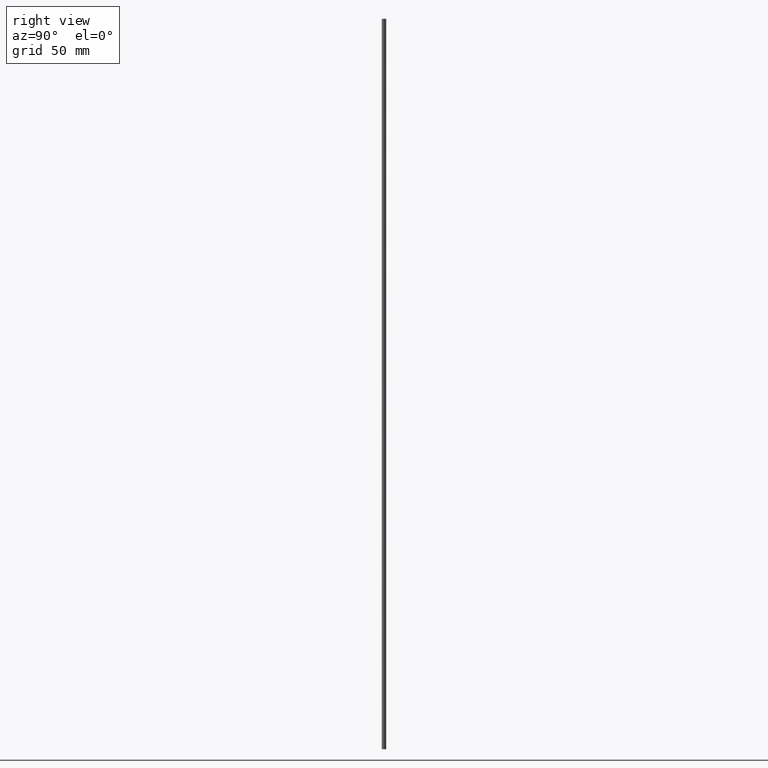
[diagram: clean part render]
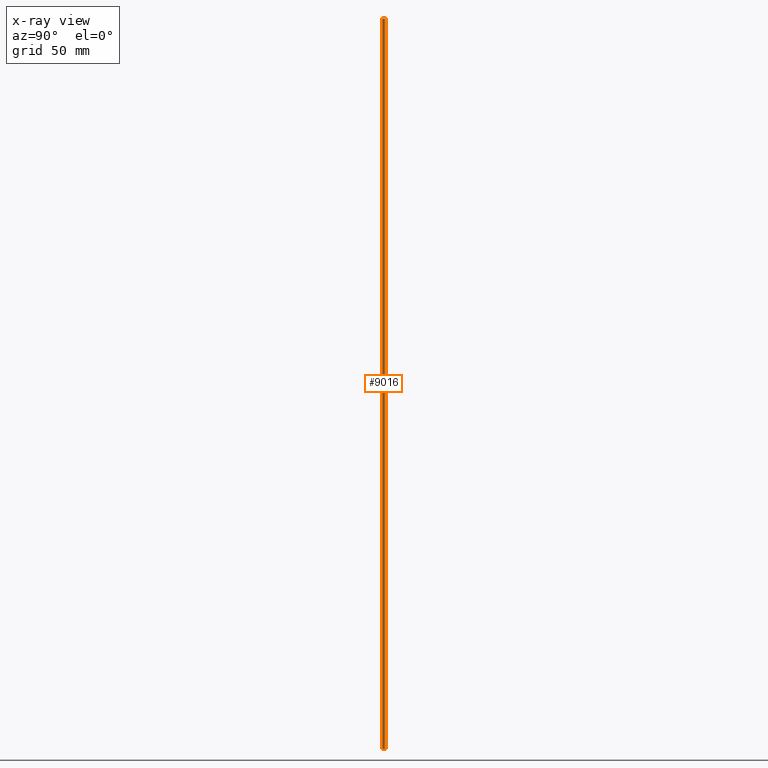
[diagram: x-ray — body ghosted, one internal face saturated and labeled with its STEP entity id]
A machine part, right view, then the same camera in x-ray: the body is ghosted and one INTERNAL B-rep face — a face not visible from any outside direction — is saturated and labeled: STEP entity #9016.
In plain terms, the highlighted face is a freeform B-spline surface patch.
Its self-contained STEP definition (entity closure, byte-faithful):
#8918=CARTESIAN_POINT('',(-0.058844321795884,-0.747688000299846,410.000000000000110));
#8919=CARTESIAN_POINT('',(-0.806532322095730,-0.688843678503961,410.000000000000170));
#8920=CARTESIAN_POINT('',(-0.747688000299846,0.058844321795884,410.000000000000110));
#8921=CARTESIAN_POINT('',(-0.688843678503961,0.806532322095730,410.000000000000170));
#8922=CARTESIAN_POINT('',(0.058844321795884,0.747688000299846,410.000000000000110));
#8923=CARTESIAN_POINT('',(-0.058844321795884,-0.747688000299846,-10.250000000000000));
#8924=CARTESIAN_POINT('',(-0.806532322095730,-0.688843678503961,-10.250000000000000));
#8925=CARTESIAN_POINT('',(-0.747688000299846,0.058844321795884,-10.250000000000000));
#8926=CARTESIAN_POINT('',(-0.688843678503961,0.806532322095730,-10.250000000000000));
#8927=CARTESIAN_POINT('',(0.058844321795884,0.747688000299846,-10.250000000000000));
#8935=(BOUNDED_SURFACE()B_SPLINE_SURFACE(2,1,((#8918,#8923),(#8919,#8924),(#8920,#8925),(#8921,#8926),(#8922,#8927)),.UNSPECIFIED.,.F.,.F.,.U.)B_SPLINE_SURFACE_WITH_KNOTS((3,2,3),(2,2),(3.141592653589793,4.712388980384690,6.283185307179586),(0.0,420.250000000000110),.UNSPECIFIED.)GEOMETRIC_REPRESENTATION_ITEM()RATIONAL_B_SPLINE_SURFACE(((1.0,1.0),(0.707106781186548,0.707106781186548),(1.0,1.0),(0.707106781186548,0.707106781186548),(1.0,1.0)))REPRESENTATION_ITEM('')SURFACE());
#8936=CARTESIAN_POINT('',(-0.750000000000000,0.0,0.0));
#8937=VERTEX_POINT('',#8936);
#8938=CARTESIAN_POINT('',(-0.058844662161859,-0.747687973512307,2.842171E-014));
#8939=VERTEX_POINT('',#8938);
#8940=CARTESIAN_POINT('',(-0.750000000000000,0.0,0.0));
#8941=CARTESIAN_POINT('',(-0.750000000000000,-0.693292235584134,0.0));
#8942=CARTESIAN_POINT('',(-0.058844662161859,-0.747687973512307,2.842171E-014));
#8950=(BOUNDED_CURVE()B_SPLINE_CURVE(2,(#8940,#8941,#8942),.UNSPECIFIED.,.F.,.U.)B_SPLINE_CURVE_WITH_KNOTS((3,3),(0.0,0.236331144559496),.UNSPECIFIED.)CURVE()GEOMETRIC_REPRESENTATION_ITEM()RATIONAL_B_SPLINE_CURVE((1.0,0.723120841456408,0.969723030459033))REPRESENTATION_ITEM(''));
#8951=EDGE_CURVE('',#8937,#8939,#8950,.T.);
#8952=ORIENTED_EDGE('',*,*,#8951,.T.);
#8953=CARTESIAN_POINT('',(-0.058844662161859,-0.747687973512307,400.0));
#8954=VERTEX_POINT('',#8953);
#8955=CARTESIAN_POINT('',(-0.058844662161859,-0.747687973512307,400.0));
#8956=CARTESIAN_POINT('',(-0.058844662161859,-0.747687973512307,2.842171E-014));
#8957=QUASI_UNIFORM_CURVE('',1,(#8955,#8956),.UNSPECIFIED.,.F.,.U.);
#8958=EDGE_CURVE('',#8954,#8939,#8957,.T.);
#8959=ORIENTED_EDGE('',*,*,#8958,.F.);
#8960=CARTESIAN_POINT('',(-0.750000000000000,0.0,400.0));
#8961=VERTEX_POINT('',#8960);
#8962=CARTESIAN_POINT('',(-0.750000000000000,0.0,400.0));
#8963=CARTESIAN_POINT('',(-0.750000000000000,-0.693292235584134,400.0));
#8964=CARTESIAN_POINT('',(-0.058844662161859,-0.747687973512307,400.000000000000060));
#8972=(BOUNDED_CURVE()B_SPLINE_CURVE(2,(#8962,#8963,#8964),.UNSPECIFIED.,.F.,.U.)B_SPLINE_CURVE_WITH_KNOTS((3,3),(0.0,0.236331144559496),.UNSPECIFIED.)CURVE()GEOMETRIC_REPRESENTATION_ITEM()RATIONAL_B_SPLINE_CURVE((1.0,0.723120841456408,0.969723030459033))REPRESENTATION_ITEM(''));
#8973=EDGE_CURVE('',#8961,#8954,#8972,.T.);
#8974=ORIENTED_EDGE('',*,*,#8973,.F.);
#8975=CARTESIAN_POINT('',(0.058844662161859,0.747687973512307,400.0));
#8976=VERTEX_POINT('',#8975);
#8977=CARTESIAN_POINT('',(0.058844662161859,0.747687973512307,400.0));
#8978=CARTESIAN_POINT('',(0.029467922201277,0.750000000000000,400.0));
#8979=CARTESIAN_POINT('',(0.0,0.750000000000000,400.0));
#8980=CARTESIAN_POINT('',(-0.750000000000000,0.750000000000000,400.0));
#8981=CARTESIAN_POINT('',(-0.750000000000000,0.0,400.0));
#8989=(BOUNDED_CURVE()B_SPLINE_CURVE(2,(#8977,#8978,#8979,#8980,#8981),.UNSPECIFIED.,.F.,.U.)B_SPLINE_CURVE_WITH_KNOTS((3,2,3),(0.736331144559496,0.750000000000000,1.0),.UNSPECIFIED.)CURVE()GEOMETRIC_REPRESENTATION_ITEM()RATIONAL_B_SPLINE_CURVE((0.969723030459033,0.983985939730139,1.0,0.707106781186548,1.0))REPRESENTATION_ITEM(''));
#8990=EDGE_CURVE('',#8976,#8961,#8989,.T.);
#8991=ORIENTED_EDGE('',*,*,#8990,.F.);
#8992=CARTESIAN_POINT('',(0.058844662161859,0.747687973512307,2.842171E-014));
#8993=VERTEX_POINT('',#8992);
#8994=CARTESIAN_POINT('',(0.058844662161859,0.747687973512307,400.0));
#8995=CARTESIAN_POINT('',(0.058844662161859,0.747687973512307,2.842171E-014));
#8996=QUASI_UNIFORM_CURVE('',1,(#8994,#8995),.UNSPECIFIED.,.F.,.U.);
#8997=EDGE_CURVE('',#8976,#8993,#8996,.T.);
#8998=ORIENTED_EDGE('',*,*,#8997,.T.);
#8999=CARTESIAN_POINT('',(0.058844662161859,0.747687973512307,2.842171E-014));
#9000=CARTESIAN_POINT('',(0.029467922201277,0.750000000000000,0.0));
#9001=CARTESIAN_POINT('',(0.0,0.750000000000000,0.0));
#9002=CARTESIAN_POINT('',(-0.750000000000000,0.750000000000000,0.0));
#9003=CARTESIAN_POINT('',(-0.750000000000000,0.0,0.0));
#9011=(BOUNDED_CURVE()B_SPLINE_CURVE(2,(#8999,#9000,#9001,#9002,#9003),.UNSPECIFIED.,.F.,.U.)B_SPLINE_CURVE_WITH_KNOTS((3,2,3),(0.736331144559496,0.750000000000000,1.0),.UNSPECIFIED.)CURVE()GEOMETRIC_REPRESENTATION_ITEM()RATIONAL_B_SPLINE_CURVE((0.969723030459033,0.983985939730139,1.0,0.707106781186548,1.0))REPRESENTATION_ITEM(''));
#9012=EDGE_CURVE('',#8993,#8937,#9011,.T.);
#9013=ORIENTED_EDGE('',*,*,#9012,.T.);
#9014=EDGE_LOOP('',(#8952,#8959,#8974,#8991,#8998,#9013));
#9015=FACE_OUTER_BOUND('',#9014,.T.);
#9016=ADVANCED_FACE('',(#9015),#8935,.T.);